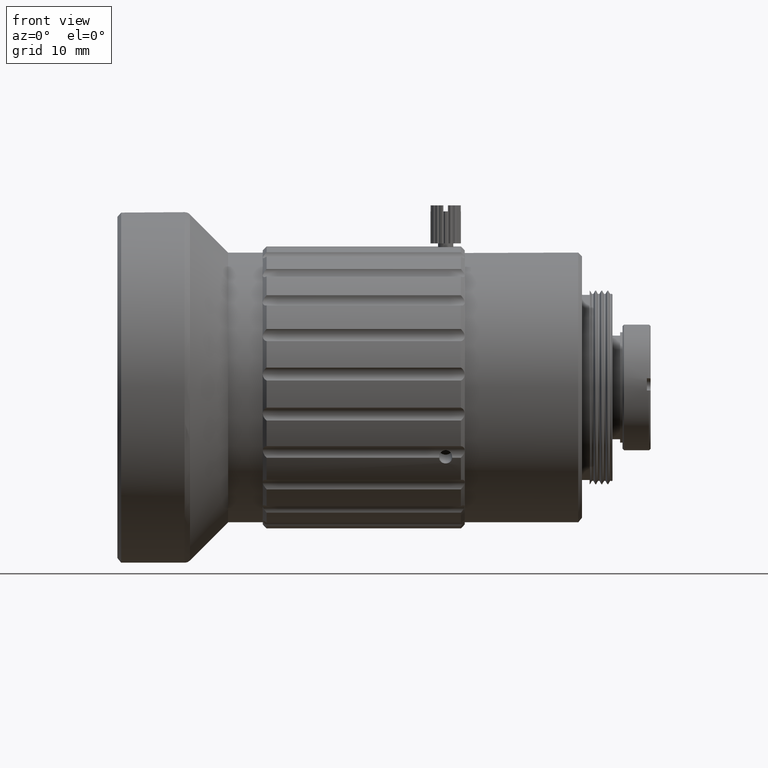
[diagram: clean part render]
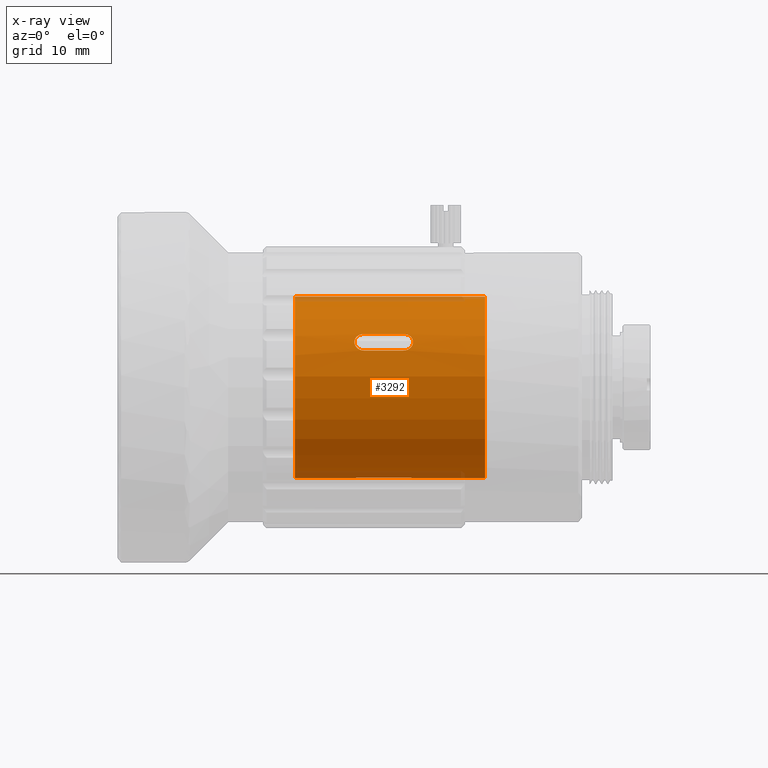
[diagram: x-ray — body ghosted, one internal face saturated and labeled with its STEP entity id]
A machine part, front view, then the same camera in x-ray: the body is ghosted and one INTERNAL B-rep face — a face not visible from any outside direction — is saturated and labeled: STEP entity #3292.
In plain terms, the highlighted cylindrical surface (bore or boss wall) has radius 11.9 mm, axis along (1, -0, -0).
Its self-contained STEP definition (entity closure, byte-faithful):
#25 = CARTESIAN_POINT ( 'NONE',  ( -9.184677489724803578, -1.642868657550832889, 56.34071791548019803 ) ) ;
#37 = CARTESIAN_POINT ( 'NONE',  ( -9.151654673773190751, -11.94637123739637552, 74.47348723688190830 ) ) ;
#79 = AXIS2_PLACEMENT_3D ( 'NONE', #1200, #8445, #11833 ) ;
#146 = VECTOR ( 'NONE', #6055, 1000.000000000000000 ) ;
#213 = ORIENTED_EDGE ( 'NONE', *, *, #8540, .F. ) ;
#273 = CARTESIAN_POINT ( 'NONE',  ( -1.642445136869598032, 8.169388357276382351, 74.72786252108184613 ) ) ;
#345 = CARTESIAN_POINT ( 'NONE',  ( -1.735562456585920232, 8.092278791502460322, 74.84424106328729920 ) ) ;
#464 = EDGE_CURVE ( 'NONE', #5551, #12857, #3720, .T. ) ;
#499 = EDGE_LOOP ( 'NONE', ( #14790, #2960, #9993, #8556 ) ) ;
#567 = CARTESIAN_POINT ( 'NONE',  ( -1.966810841060981918, 8.961708592701908671, 73.30388502422061947 ) ) ;
#574 = CARTESIAN_POINT ( 'NONE',  ( -8.702546241375586078, 7.961652658962267815, 75.03603271186838697 ) ) ;
#583 = VERTEX_POINT ( 'NONE', #8662 ) ;
#619 = CARTESIAN_POINT ( 'NONE',  ( -1.642609101205172450, -2.437907923346891437, 56.35643313268337806 ) ) ;
#681 = DIRECTION ( 'NONE',  ( -1.000000000000000000, 0.000000000000000000, 0.000000000000000000 ) ) ;
#758 = DIRECTION ( 'NONE',  ( -1.000000000000000000, 4.170008355714338612E-17, -0.000000000000000000 ) ) ;
#924 = CARTESIAN_POINT ( 'NONE',  ( -8.933468981649761886, -2.577120561135204380, 56.36503325965509248 ) ) ;
#954 = CARTESIAN_POINT ( 'NONE',  ( -2.734678541218817038, -12.68175508617212266, 73.07526936896931602 ) ) ;
#1037 = ORIENTED_EDGE ( 'NONE', *, *, #464, .F. ) ;
#1159 = CARTESIAN_POINT ( 'NONE',  ( -8.703363473684134988, -11.57832727837564235, 75.03522637403740703 ) ) ;
#1199 = CARTESIAN_POINT ( 'NONE',  ( -2.734678541218817038, -3.058066145625022436, 56.40655116770321342 ) ) ;
#1200 = CARTESIAN_POINT ( 'NONE',  ( 50.20457836348856517, -1.808066145625021992, 68.24071780503437878 ) ) ;
#1232 = CARTESIAN_POINT ( 'NONE',  ( -9.184794495961801530, -12.19490595452362136, 74.05020788618746508 ) ) ;
#1247 = CIRCLE ( 'NONE', #7774, 11.90000000000512870 ) ;
#1292 = LINE ( 'NONE', #11334, #11259 ) ;
#1307 = CARTESIAN_POINT ( 'NONE',  ( -8.262483637670612779, -12.66851428331800022, 73.10535017273899427 ) ) ;
#1314 = EDGE_LOOP ( 'NONE', ( #8646 ) ) ;
#1317 = B_SPLINE_CURVE_WITH_KNOTS ( 'NONE', 3,
 ( #13534, #3203, #10130, #4406, #7813, #924, #5545, #3650, #12770, #25, #11553, #2433, #5844, #11633, #8242, #12847, #5912, #14813 ),
 .UNSPECIFIED., .F., .F.,
 ( 4, 2, 2, 2, 2, 2, 2, 2, 4 ),
 ( -0.001954029117671163534, -0.001465519877458421223, -0.0009770106372456789125, -0.0004885013970329366018, 7.843179805708949681E-09, 0.0004885170833925480197, 0.0009770263236052903304, 0.001465535563818032641, 0.001954044804030774952 ),
 .UNSPECIFIED. ) ;
#1346 = EDGE_CURVE ( 'NONE', #2928, #12857, #1317, .T. ) ;
#1391 = EDGE_CURVE ( 'NONE', #2117, #10719, #1292, .T. ) ;
#1435 = DIRECTION ( 'NONE',  ( 1.000000000000000000, -0.000000000000000000, -0.000000000000000000 ) ) ;
#1540 = CARTESIAN_POINT ( 'NONE',  ( -2.406873444765950332, 9.052381992067886074, 73.10535017273915059 ) ) ;
#1620 = EDGE_CURVE ( 'NONE', #9177, #13785, #7334, .T. ) ;
#1626 = CARTESIAN_POINT ( 'NONE',  ( -8.262107037845776603, 9.052422402842930538, 73.10525922957194211 ) ) ;
#1751 = CARTESIAN_POINT ( 'NONE',  ( -1.642754186890256207, -1.178244476131799834, 56.35644505294253293 ) ) ;
#1780 = VERTEX_POINT ( 'NONE', #1199 ) ;
#1789 = CARTESIAN_POINT ( 'NONE',  ( -7.934678541217745185, -11.43175508617214575, 75.24033287843042217 ) ) ;
#1822 = CARTESIAN_POINT ( 'NONE',  ( -2.734678541218817038, -3.058066145625022436, 56.40655116770321342 ) ) ;
#1851 = CARTESIAN_POINT ( 'NONE',  ( -7.934678541217745185, 7.815622794922005845, 75.24033287843056428 ) ) ;
#1948 = CARTESIAN_POINT ( 'NONE',  ( -2.407250044590786509, -12.66855469409304114, 73.10525922957178580 ) ) ;
#2117 = VERTEX_POINT ( 'NONE', #6648 ) ;
#2199 = CARTESIAN_POINT ( 'NONE',  ( -2.734678541218817038, -11.43175508617214575, 75.24033287843042217 ) ) ;
#2250 = CARTESIAN_POINT ( 'NONE',  ( -1.642445136869595812, -12.41482551919883015, 73.63787451162663444 ) ) ;
#2332 = ORIENTED_EDGE ( 'NONE', *, *, #1620, .T. ) ;
#2398 = EDGE_CURVE ( 'NONE', #2117, #9177, #8297, .T. ) ;
#2403 = CARTESIAN_POINT ( 'NONE',  ( -2.734678541218817038, 7.815622794922005845, 75.24033287843056428 ) ) ;
#2433 = CARTESIAN_POINT ( 'NONE',  ( -9.026747981231391549, -1.178224367903151659, 56.35643313268338517 ) ) ;
#2557 = FACE_BOUND ( 'NONE', #8305, .T. ) ;
#2609 = CARTESIAN_POINT ( 'NONE',  ( -2.569411771767923014, 7.815622794922002292, 75.24033287843056428 ) ) ;
#2632 = FACE_BOUND ( 'NONE', #10589, .T. ) ;
#2667 = CARTESIAN_POINT ( 'NONE',  ( -7.934678541217745185, 9.065622794922010286, 73.07526936896945813 ) ) ;
#2750 = ORIENTED_EDGE ( 'NONE', *, *, #1391, .F. ) ;
#2762 = CARTESIAN_POINT ( 'NONE',  ( -9.184561951559130577, 8.579643375420275220, 74.04865264670759473 ) ) ;
#2835 = CARTESIAN_POINT ( 'NONE',  ( -1.642078801489900597, 8.798538757711877878, 73.63820716780315934 ) ) ;
#2928 = VERTEX_POINT ( 'NONE', #4861 ) ;
#2960 = ORIENTED_EDGE ( 'NONE', *, *, #3623, .F. ) ;
#3023 = CARTESIAN_POINT ( 'NONE',  ( -47.53439864542642113, -3.058066145625017995, 56.40655116770321342 ) ) ;
#3068 = CARTESIAN_POINT ( 'NONE',  ( -9.184794495961796201, 8.416519752136604637, 74.33123990400349612 ) ) ;
#3161 = CARTESIAN_POINT ( 'NONE',  ( -8.564778907581439782, -11.52447100154324566, 75.11134015372549300 ) ) ;
#3203 = CARTESIAN_POINT ( 'NONE',  ( -8.099869679809868828, -3.058066145625022436, 56.40655116770320632 ) ) ;
#3292 = ADVANCED_FACE ( 'NONE', ( #2632, #13958, #3706, #2557, #3854 ), #7173, .F. ) ;
#3316 = CARTESIAN_POINT ( 'NONE',  ( -2.569412078456701831, -11.43175508617214220, 75.24033287843040796 ) ) ;
#3359 = ORIENTED_EDGE ( 'NONE', *, *, #8270, .T. ) ;
#3385 = CARTESIAN_POINT ( 'NONE',  ( -2.406873444765949444, -11.45118542497588976, 75.21382560490739877 ) ) ;
#3516 = CARTESIAN_POINT ( 'NONE',  ( 7.966870261256968178, -1.808066145625021992, 56.34071780502925009 ) ) ;
#3589 = CARTESIAN_POINT ( 'NONE',  ( -9.027278280946662292, -12.41467104896199736, 73.63820716780298881 ) ) ;
#3623 = EDGE_CURVE ( 'NONE', #11307, #8016, #14781, .T. ) ;
#3650 = CARTESIAN_POINT ( 'NONE',  ( -9.151449618965099120, -2.137371893064424988, 56.34432457405131345 ) ) ;
#3695 = B_SPLINE_CURVE_WITH_KNOTS ( 'NONE', 3,
 ( #11964, #9849, #1626, #10974, #6324, #13101, #8798, #5339, #2762, #3068, #13323, #9704, #10901, #574, #5105, #12190, #8724, #1851 ),
 .UNSPECIFIED., .F., .F.,
 ( 4, 2, 2, 2, 2, 2, 2, 2, 4 ),
 ( 0.000000000000000000, 0.0004887366748634074847, 0.0009774733497268149694, 0.001466210024590222562, 0.001954946699453629939, 0.002443683374317037315, 0.002932420049180445125, 0.003421156724043852501, 0.003909893398907259877 ),
 .UNSPECIFIED. ) ;
#3706 = FACE_OUTER_BOUND ( 'NONE', #1314, .T. ) ;
#3719 = LINE ( 'NONE', #10707, #146 ) ;
#3720 = LINE ( 'NONE', #11921, #14273 ) ;
#3749 = VECTOR ( 'NONE', #10862, 1000.000000000000000 ) ;
#3854 = FACE_BOUND ( 'NONE', #499, .T. ) ;
#3971 = CARTESIAN_POINT ( 'NONE',  ( -2.734678541218817038, 7.815622794922005845, 75.24033287843056428 ) ) ;
#4108 = EDGE_CURVE ( 'NONE', #583, #583, #1247, .T. ) ;
#4179 = CARTESIAN_POINT ( 'NONE',  ( -1.965625790725819444, -2.806857688423870734, 56.38214448062095130 ) ) ;
#4195 = CARTESIAN_POINT ( 'NONE',  ( -7.934678541217745185, -0.5580661456250214369, 56.40655116770321342 ) ) ;
#4406 = CARTESIAN_POINT ( 'NONE',  ( -8.564516284239109822, -2.900137979409032507, 56.39076645582172631 ) ) ;
#4439 = CARTESIAN_POINT ( 'NONE',  ( -1.516904991896393273, -11.94766343324539370, 74.47141004920550245 ) ) ;
#4563 = CARTESIAN_POINT ( 'NONE',  ( -7.934678541217745185, 7.815622794922005845, 75.24033287843056428 ) ) ;
#4576 = CARTESIAN_POINT ( 'NONE',  ( -2.734678541218817038, -0.5580661456250225472, 56.40655116770321342 ) ) ;
#4638 = CARTESIAN_POINT ( 'NONE',  ( -9.184561951559132353, -12.03174002256145592, 74.33277071655642487 ) ) ;
#4689 = EDGE_CURVE ( 'NONE', #4875, #8016, #3695, .T. ) ;
#4774 = DIRECTION ( 'NONE',  ( -1.000000000000000000, 4.170008355714338612E-17, -0.000000000000000000 ) ) ;
#4861 = CARTESIAN_POINT ( 'NONE',  ( -7.934678541217745185, -3.058066145625021548, 56.40655116770321342 ) ) ;
#4872 = CARTESIAN_POINT ( 'NONE',  ( -2.734678541218817038, 9.065622794922010286, 73.07526936896945813 ) ) ;
#4875 = VERTEX_POINT ( 'NONE', #2667 ) ;
#4944 = CARTESIAN_POINT ( 'NONE',  ( -1.517702408663369917, 8.330238946146247159, 74.47348723688206462 ) ) ;
#5098 = CARTESIAN_POINT ( 'NONE',  ( -2.104578174855125106, 7.908338710293108420, 75.11134015372564932 ) ) ;
#5105 = CARTESIAN_POINT ( 'NONE',  ( -8.565147714681558000, 7.908460865915746041, 75.11116791099082945 ) ) ;
#5234 = CARTESIAN_POINT ( 'NONE',  ( -2.569490083841543093, -3.058066145625023324, 56.40655116770321342 ) ) ;
#5339 = CARTESIAN_POINT ( 'NONE',  ( -9.151654673773190751, 8.658823064171745187, 73.90436284990168758 ) ) ;
#5445 = CARTESIAN_POINT ( 'NONE',  ( 7.966870261256968178, -1.808066145625021992, 68.24071780503437878 ) ) ;
#5467 = CARTESIAN_POINT ( 'NONE',  ( -2.405368082890710912, -3.024835655728378647, 56.40292216620819943 ) ) ;
#5512 = CARTESIAN_POINT ( 'NONE',  ( -2.104578174855125994, -12.61640206735985359, 73.22006006936828726 ) ) ;
#5545 = CARTESIAN_POINT ( 'NONE',  ( -9.026602895546306016, -2.437887815118244372, 56.35644505294253293 ) ) ;
#5551 = VERTEX_POINT ( 'NONE', #4576 ) ;
#5579 = CARTESIAN_POINT ( 'NONE',  ( -2.569411771767922126, -12.68175508617212088, 73.07526936896931602 ) ) ;
#5844 = CARTESIAN_POINT ( 'NONE',  ( -8.933986984170086743, -1.039685175759477609, 56.36498892123087501 ) ) ;
#5854 = CARTESIAN_POINT ( 'NONE',  ( -9.152452090540169394, -12.27380255605016579, 73.90652051817167489 ) ) ;
#5912 = CARTESIAN_POINT ( 'NONE',  ( -8.099866998595022238, -0.5580661456250206598, 56.40655116770322053 ) ) ;
#5928 = CARTESIAN_POINT ( 'NONE',  ( -8.099945003979863500, -12.68175508617212088, 73.07526936896931602 ) ) ;
#6019 = CARTESIAN_POINT ( 'NONE',  ( -2.407250044590781179, 7.834994580020151034, 75.21390607324894972 ) ) ;
#6055 = DIRECTION ( 'NONE',  ( -1.000000000000000000, -2.085004177857186870E-17, 3.611333170041985000E-17 ) ) ;
#6057 = CARTESIAN_POINT ( 'NONE',  ( -17.00467854121835032, -1.808066145625021992, 68.24071780503437878 ) ) ;
#6317 = CARTESIAN_POINT ( 'NONE',  ( -2.104209367755004223, 9.000181687337091674, 73.22025198060826767 ) ) ;
#6324 = CARTESIAN_POINT ( 'NONE',  ( -8.703363473684142093, 8.961281447737979633, 73.30475786310259423 ) ) ;
#6339 = B_SPLINE_CURVE_WITH_KNOTS ( 'NONE', 3,
 ( #3971, #2609, #6019, #5098, #11879, #345, #273, #4944, #7143, #12033, #10892, #2835, #9544, #567, #6317, #1540, #10670, #4872 ),
 .UNSPECIFIED., .F., .F.,
 ( 4, 2, 2, 2, 2, 2, 2, 2, 4 ),
 ( 0.000000000000000000, 0.0004887366748634036900, 0.0009774733497268073799, 0.001466210024590211070, 0.001954946699453614760, 0.002443683374317018667, 0.002932420049180422140, 0.003421156724043825613, 0.003909893398907229520 ),
 .UNSPECIFIED. ) ;
#6375 = CARTESIAN_POINT ( 'NONE',  ( -1.517907463471465768, -1.478760398185618774, 56.34432457405130634 ) ) ;
#6441 = VECTOR ( 'NONE', #758, 1000.000000000000000 ) ;
#6571 = CARTESIAN_POINT ( 'NONE',  ( -2.104209367755006888, -11.52459315716588151, 75.11116791099065892 ) ) ;
#6648 = CARTESIAN_POINT ( 'NONE',  ( -2.734678541218817038, -12.68175508617212266, 73.07526936896931602 ) ) ;
#6859 = EDGE_CURVE ( 'NONE', #11307, #10321, #6339, .T. ) ;
#7143 = CARTESIAN_POINT ( 'NONE',  ( -1.484795130877430314, 8.415607731311329331, 74.33277071655656698 ) ) ;
#7173 = CYLINDRICAL_SURFACE ( 'NONE', #79, 11.90000000000512870 ) ;
#7334 = LINE ( 'NONE', #14193, #3749 ) ;
#7774 = AXIS2_PLACEMENT_3D ( 'NONE', #6057, #1435, #10787 ) ;
#7813 = CARTESIAN_POINT ( 'NONE',  ( -8.703056286595245439, -2.807377247496046557, 56.38218899927380079 ) ) ;
#7847 = CARTESIAN_POINT ( 'NONE',  ( -47.53439864542642113, 7.815622794922005845, 75.24033287843056428 ) ) ;
#8016 = VERTEX_POINT ( 'NONE', #4563 ) ;
#8022 = EDGE_CURVE ( 'NONE', #13785, #10719, #12351, .T. ) ;
#8038 = CARTESIAN_POINT ( 'NONE',  ( -7.934678541217745185, -11.43175508617214575, 75.24033287843042217 ) ) ;
#8182 = CARTESIAN_POINT ( 'NONE',  ( -8.935767236177637685, -12.47612682725211641, 73.51482355832271764 ) ) ;
#8242 = CARTESIAN_POINT ( 'NONE',  ( -8.564500603081063090, -0.7161423437635231481, 56.39075425917241091 ) ) ;
#8270 = EDGE_CURVE ( 'NONE', #5551, #1780, #10121, .T. ) ;
#8297 = B_SPLINE_CURVE_WITH_KNOTS ( 'NONE', 3,
 ( #954, #5579, #1948, #5512, #10166, #8894, #2250, #10019, #13495, #14778, #4439, #14631, #9036, #13639, #6571, #3385, #3316, #12517 ),
 .UNSPECIFIED., .F., .F.,
 ( 4, 2, 2, 2, 2, 2, 2, 2, 4 ),
 ( 0.000000000000000000, 0.0004887366748634071594, 0.0009774733497268143188, 0.001466210024590221261, 0.001954946699453628638, 0.002443683374317036014, 0.002932420049180442523, 0.003421156724043850333, 0.003909893398907258143 ),
 .UNSPECIFIED. ) ;
#8305 = EDGE_LOOP ( 'NONE', ( #9761, #2750, #12519, #2332 ) ) ;
#8445 = DIRECTION ( 'NONE',  ( 1.000000000000000000, -0.000000000000000000, -0.000000000000000000 ) ) ;
#8540 = EDGE_CURVE ( 'NONE', #14067, #14067, #10984, .T. ) ;
#8556 = ORIENTED_EDGE ( 'NONE', *, *, #14867, .T. ) ;
#8591 = EDGE_CURVE ( 'NONE', #1780, #2928, #9961, .T. ) ;
#8646 = ORIENTED_EDGE ( 'NONE', *, *, #4108, .F. ) ;
#8662 = CARTESIAN_POINT ( 'NONE',  ( -17.00467854121835032, -1.808066145625021992, 56.34071780502925009 ) ) ;
#8724 = CARTESIAN_POINT ( 'NONE',  ( -8.099945003979859948, 7.815622794922005845, 75.24033287843056428 ) ) ;
#8779 = CARTESIAN_POINT ( 'NONE',  ( -2.407402975272829870, -0.5906068335273420011, 56.40299164279201705 ) ) ;
#8798 = CARTESIAN_POINT ( 'NONE',  ( -9.026911945566961748, 8.798693227948719553, 73.63787451162680497 ) ) ;
#8894 = CARTESIAN_POINT ( 'NONE',  ( -1.735562456585914015, -12.47705751031719501, 73.51290639768892277 ) ) ;
#8898 = DIRECTION ( 'NONE',  ( -1.000000000000000000, -2.085004177857186870E-17, 3.611333170041985000E-17 ) ) ;
#9000 = VECTOR ( 'NONE', #8898, 1000.000000000000000 ) ;
#9036 = CARTESIAN_POINT ( 'NONE',  ( -1.733589846258925871, -11.70960605103204877, 74.84247648779304996 ) ) ;
#9177 = VERTEX_POINT ( 'NONE', #2199 ) ;
#9206 = CARTESIAN_POINT ( 'NONE',  ( -2.734678541218817038, 9.065622794922010286, 73.07526936896945813 ) ) ;
#9307 = CARTESIAN_POINT ( 'NONE',  ( -8.933794625850644877, -11.70841108275259401, 74.84424106328715709 ) ) ;
#9544 = CARTESIAN_POINT ( 'NONE',  ( -1.733589846258929423, 8.859994536001996934, 73.51482355832287396 ) ) ;
#9704 = CARTESIAN_POINT ( 'NONE',  ( -9.027278280946660516, 8.169599210857398930, 74.72756241784443887 ) ) ;
#9761 = ORIENTED_EDGE ( 'NONE', *, *, #8022, .T. ) ;
#9849 = CARTESIAN_POINT ( 'NONE',  ( -8.099945310668637433, 9.065622794922010286, 73.07526936896945813 ) ) ;
#9905 = CARTESIAN_POINT ( 'NONE',  ( -2.734678541218817038, -0.5580661456250225472, 56.40655116770321342 ) ) ;
#9961 = LINE ( 'NONE', #3023, #6441 ) ;
#9981 = CARTESIAN_POINT ( 'NONE',  ( -1.966300795841317672, -0.8087550437539972048, 56.38218899927380789 ) ) ;
#9993 = ORIENTED_EDGE ( 'NONE', *, *, #6859, .T. ) ;
#10019 = CARTESIAN_POINT ( 'NONE',  ( -1.517702408663369695, -12.27495535542186289, 73.90436284990157390 ) ) ;
#10121 = B_SPLINE_CURVE_WITH_KNOTS ( 'NONE', 3,
 ( #9905, #12095, #8779, #10127, #9981, #13228, #1751, #6375, #11111, #14513, #10949, #619, #13455, #4179, #12405, #5467, #5234, #1822 ),
 .UNSPECIFIED., .F., .F.,
 ( 4, 2, 2, 2, 2, 2, 2, 2, 4 ),
 ( -0.001954029117671165702, -0.001465519877458423825, -0.0009770106372456821651, -0.0004885013970329400712, 7.843179802239502729E-09, 0.0004885170833925445502, 0.0009770263236052864272, 0.001465535563818029172, 0.001954044804030771916 ),
 .UNSPECIFIED. ) ;
#10127 = CARTESIAN_POINT ( 'NONE',  ( -2.104840798197450624, -0.7159943118410104779, 56.39076645582175473 ) ) ;
#10130 = CARTESIAN_POINT ( 'NONE',  ( -8.261954107163735017, -3.025525457722701983, 56.40299164279201705 ) ) ;
#10166 = CARTESIAN_POINT ( 'NONE',  ( -1.965993608752422350, -12.57741373898809734, 73.30475786310245212 ) ) ;
#10179 = ORIENTED_EDGE ( 'NONE', *, *, #1346, .T. ) ;
#10297 = ORIENTED_EDGE ( 'NONE', *, *, #8591, .T. ) ;
#10321 = VERTEX_POINT ( 'NONE', #9206 ) ;
#10363 = CARTESIAN_POINT ( 'NONE',  ( -9.026911945566961748, -11.78552064852651426, 74.72786252108173244 ) ) ;
#10507 = CARTESIAN_POINT ( 'NONE',  ( -7.934678541217745185, -12.68175508617212266, 73.07526936896931602 ) ) ;
#10589 = EDGE_LOOP ( 'NONE', ( #10297, #10179, #1037, #3359 ) ) ;
#10670 = CARTESIAN_POINT ( 'NONE',  ( -2.569412078456701387, 9.065622794922013838, 73.07526936896947234 ) ) ;
#10707 = CARTESIAN_POINT ( 'NONE',  ( -47.53439864542642113, 9.065622794922010286, 73.07526936896945813 ) ) ;
#10719 = VERTEX_POINT ( 'NONE', #12507 ) ;
#10787 = DIRECTION ( 'NONE',  ( 0.000000000000000000, 0.000000000000000000, -1.000000000000000000 ) ) ;
#10862 = DIRECTION ( 'NONE',  ( -1.000000000000000000, -2.085004177857135410E-17, -3.611333170042012117E-17 ) ) ;
#10892 = CARTESIAN_POINT ( 'NONE',  ( -1.516904991896392385, 8.657670264800042759, 73.90652051817183121 ) ) ;
#10901 = CARTESIAN_POINT ( 'NONE',  ( -8.935767236177637685, 8.093473759781907972, 74.84247648779317785 ) ) ;
#10949 = CARTESIAN_POINT ( 'NONE',  ( -1.517220732151743245, -2.135347079865259179, 56.34425572471305088 ) ) ;
#10974 = CARTESIAN_POINT ( 'NONE',  ( -8.564778907581436229, 9.000269776109741215, 73.22006006936844358 ) ) ;
#10984 = CIRCLE ( 'NONE', #12201, 11.90000000000512870 ) ;
#11111 = CARTESIAN_POINT ( 'NONE',  ( -1.484677489776480064, -1.642884570599744576, 56.34071769458363121 ) ) ;
#11147 = CARTESIAN_POINT ( 'NONE',  ( -8.262107037845781932, -11.45112687127029361, 75.21390607324879340 ) ) ;
#11259 = VECTOR ( 'NONE', #11409, 1000.000000000000000 ) ;
#11307 = VERTEX_POINT ( 'NONE', #2403 ) ;
#11334 = CARTESIAN_POINT ( 'NONE',  ( -47.53439864542642113, -12.68175508617212266, 73.07526936896931602 ) ) ;
#11409 = DIRECTION ( 'NONE',  ( -1.000000000000000000, -2.085004177857135410E-17, -3.611333170042012117E-17 ) ) ;
#11496 = CARTESIAN_POINT ( 'NONE',  ( -8.099945310668637433, -11.43175508617214575, 75.24033287843042217 ) ) ;
#11553 = CARTESIAN_POINT ( 'NONE',  ( -9.152136350284820310, -1.480785211384784805, 56.34425572471305088 ) ) ;
#11633 = CARTESIAN_POINT ( 'NONE',  ( -8.703731291710743889, -0.8092746028261742497, 56.38214448062093709 ) ) ;
#11645 = CARTESIAN_POINT ( 'NONE',  ( -8.565147714681556224, -12.61631397858720405, 73.22025198060811135 ) ) ;
#11833 = DIRECTION ( 'NONE',  ( 0.000000000000000000, 0.000000000000000000, -1.000000000000000000 ) ) ;
#11879 = CARTESIAN_POINT ( 'NONE',  ( -1.965993608752428345, 7.962194987125503332, 75.03522637403754914 ) ) ;
#11921 = CARTESIAN_POINT ( 'NONE',  ( -47.53439864542642113, -0.5580661456250223251, 56.40655116770321342 ) ) ;
#11964 = CARTESIAN_POINT ( 'NONE',  ( -7.934678541217745185, 9.065622794922010286, 73.07526936896945813 ) ) ;
#12033 = CARTESIAN_POINT ( 'NONE',  ( -1.484562586474765800, 8.578773663273494776, 74.05020788618762140 ) ) ;
#12095 = CARTESIAN_POINT ( 'NONE',  ( -2.569487402626691619, -0.5580661456250209929, 56.40655116770322763 ) ) ;
#12190 = CARTESIAN_POINT ( 'NONE',  ( -8.262483637670611003, 7.835053133725748964, 75.21382560490754088 ) ) ;
#12201 = AXIS2_PLACEMENT_3D ( 'NONE', #5445, #681, #12230 ) ;
#12230 = DIRECTION ( 'NONE',  ( 0.000000000000000000, 0.000000000000000000, -1.000000000000000000 ) ) ;
#12351 = B_SPLINE_CURVE_WITH_KNOTS ( 'NONE', 3,
 ( #8038, #11496, #11147, #3161, #1159, #9307, #10363, #37, #4638, #1232, #5854, #3589, #8182, #12783, #11645, #1307, #5928, #10507 ),
 .UNSPECIFIED., .F., .F.,
 ( 4, 2, 2, 2, 2, 2, 2, 2, 4 ),
 ( 0.000000000000000000, 0.0004887366748634049910, 0.0009774733497268099820, 0.001466210024590214973, 0.001954946699453619964, 0.002443683374317024738, 0.002932420049180429946, 0.003421156724043835154, 0.003909893398907239928 ),
 .UNSPECIFIED. ) ;
#12405 = CARTESIAN_POINT ( 'NONE',  ( -2.104856479355497800, -2.899989947486520947, 56.39075425917241091 ) ) ;
#12507 = CARTESIAN_POINT ( 'NONE',  ( -7.934678541217745185, -12.68175508617212266, 73.07526936896931602 ) ) ;
#12517 = CARTESIAN_POINT ( 'NONE',  ( -2.734678541218817038, -11.43175508617214575, 75.24033287843042217 ) ) ;
#12519 = ORIENTED_EDGE ( 'NONE', *, *, #2398, .T. ) ;
#12770 = CARTESIAN_POINT ( 'NONE',  ( -9.184679592660083713, -1.973247720650299852, 56.34071769458363121 ) ) ;
#12783 = CARTESIAN_POINT ( 'NONE',  ( -8.702546241375582525, -12.57784088395201749, 73.30388502422047736 ) ) ;
#12847 = CARTESIAN_POINT ( 'NONE',  ( -8.263988999545851755, -0.5912966355216645598, 56.40292216620820653 ) ) ;
#12857 = VERTEX_POINT ( 'NONE', #4195 ) ;
#13101 = CARTESIAN_POINT ( 'NONE',  ( -8.933794625850646653, 8.860925219067075531, 73.51290639768909330 ) ) ;
#13228 = CARTESIAN_POINT ( 'NONE',  ( -1.735888100786799448, -1.039011730114840271, 56.36503325965509248 ) ) ;
#13323 = CARTESIAN_POINT ( 'NONE',  ( -9.152452090540167617, 8.331531141995260015, 74.47141004920564455 ) ) ;
#13455 = CARTESIAN_POINT ( 'NONE',  ( -1.735370098266476147, -2.576447115490567263, 56.36498892123088211 ) ) ;
#13495 = CARTESIAN_POINT ( 'NONE',  ( -1.484795130877429870, -12.19577566667039470, 74.04865264670745262 ) ) ;
#13534 = CARTESIAN_POINT ( 'NONE',  ( -7.934678541217745185, -3.058066145625021548, 56.40655116770321342 ) ) ;
#13639 = CARTESIAN_POINT ( 'NONE',  ( -1.966810841060976811, -11.57778495021240772, 75.03603271186823065 ) ) ;
#13785 = VERTEX_POINT ( 'NONE', #1789 ) ;
#13958 = FACE_OUTER_BOUND ( 'NONE', #14642, .T. ) ;
#14067 = VERTEX_POINT ( 'NONE', #3516 ) ;
#14193 = CARTESIAN_POINT ( 'NONE',  ( -47.53439864542642113, -11.43175508617214930, 75.24033287843042217 ) ) ;
#14273 = VECTOR ( 'NONE', #4774, 1000.000000000000000 ) ;
#14513 = CARTESIAN_POINT ( 'NONE',  ( -1.484679592711756424, -1.973263633699211095, 56.34071791548018382 ) ) ;
#14631 = CARTESIAN_POINT ( 'NONE',  ( -1.642078801489902373, -11.78573150210753617, 74.72756241784431097 ) ) ;
#14642 = EDGE_LOOP ( 'NONE', ( #213 ) ) ;
#14778 = CARTESIAN_POINT ( 'NONE',  ( -1.484562586474765578, -12.03265204338672945, 74.33123990400335401 ) ) ;
#14781 = LINE ( 'NONE', #7847, #9000 ) ;
#14790 = ORIENTED_EDGE ( 'NONE', *, *, #4689, .T. ) ;
#14813 = CARTESIAN_POINT ( 'NONE',  ( -7.934678541217745185, -0.5580661456250214369, 56.40655116770321342 ) ) ;
#14867 = EDGE_CURVE ( 'NONE', #10321, #4875, #3719, .T. ) ;